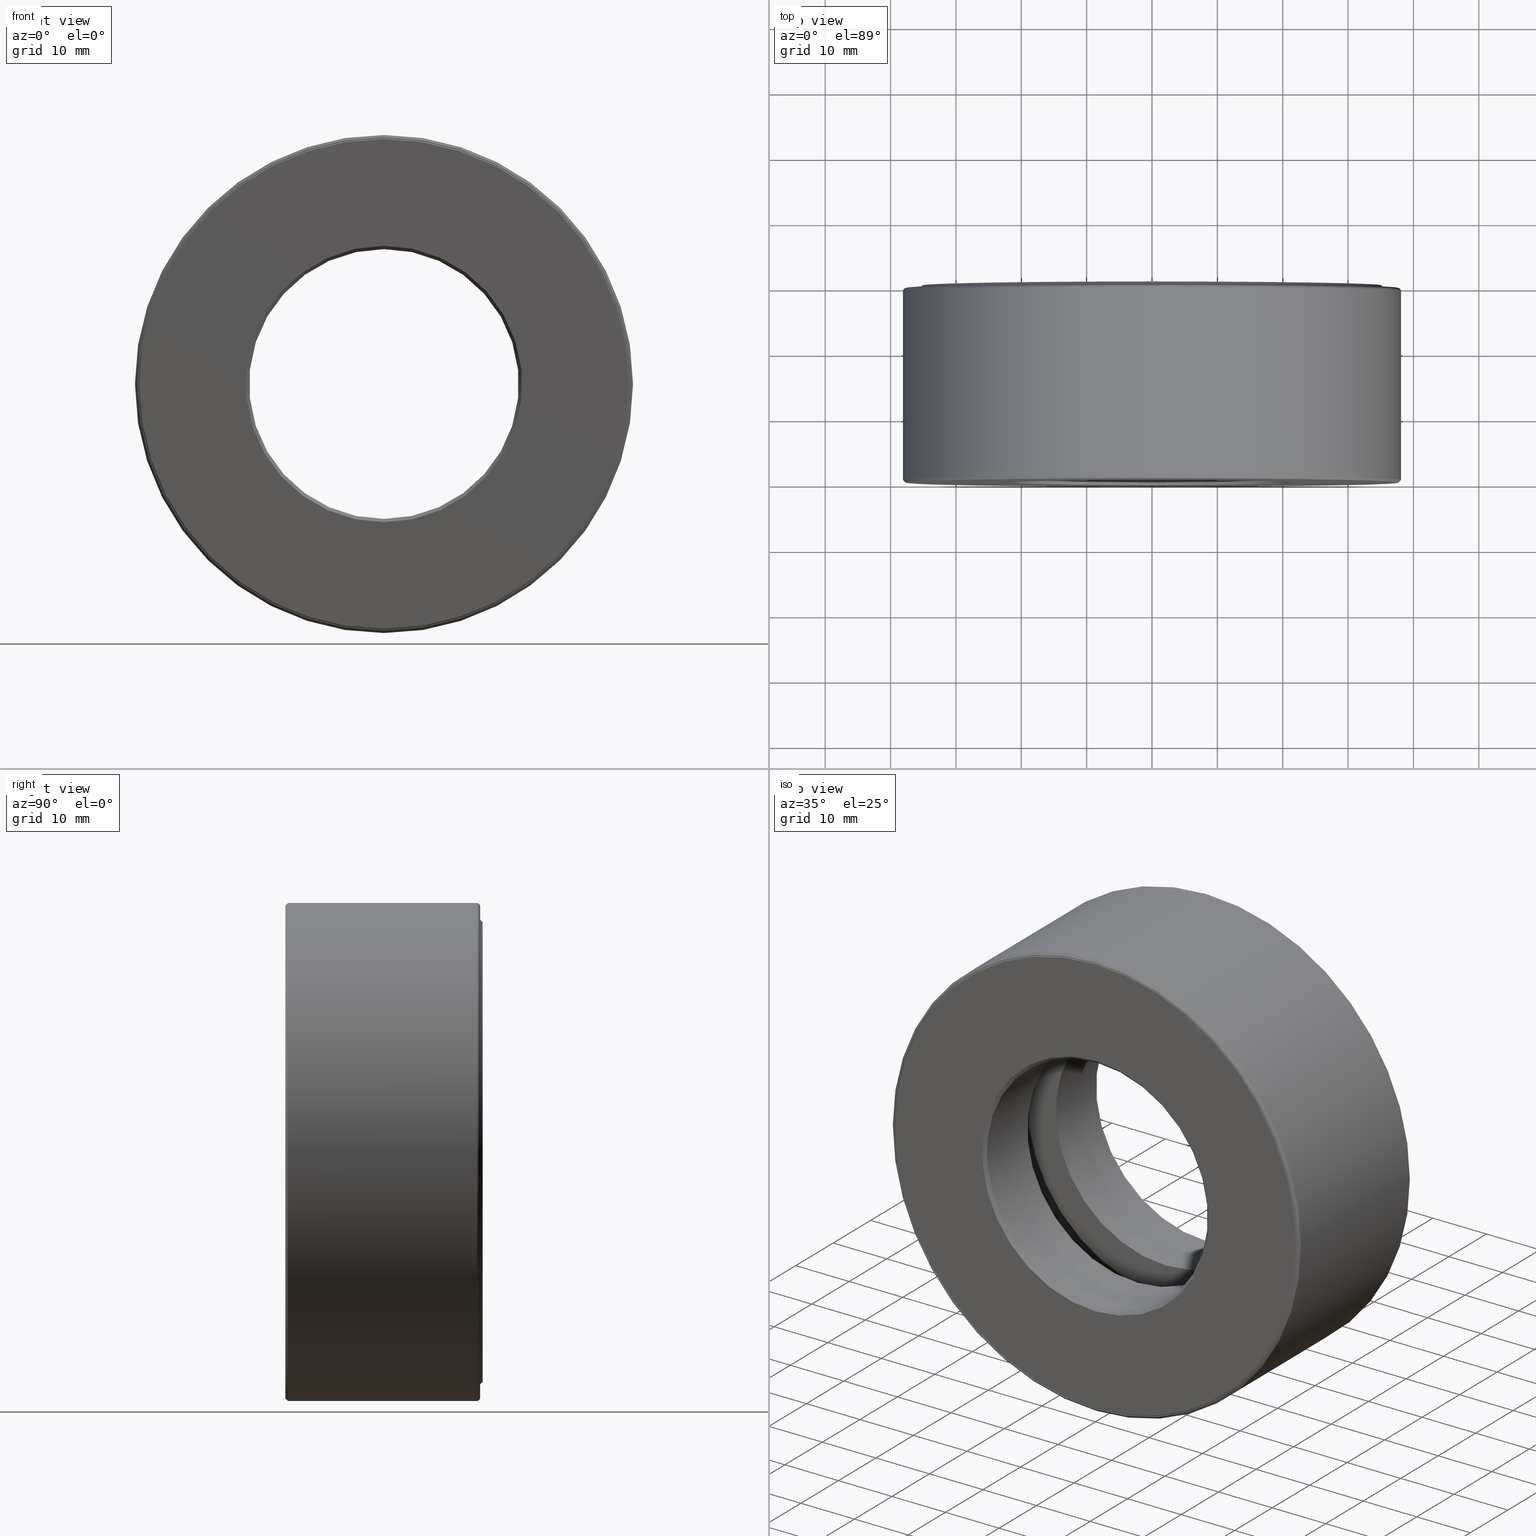
[diagram: canonical four-view strip — front | top / right | iso, engineering-drawing reading convention]
A machine part, canonical four-view strip (front | top / right | iso — engineering-drawing reading convention). The complete STEP part file that produces these views, byte-faithful:
ISO-10303-21;
HEADER;
FILE_DESCRIPTION (( 'STEP AP203' ),
    '1' );
FILE_NAME ('T-100-29.step',
    '2016-06-29T18:27:29',
    ( '' ),
    ( '' ),
    'SwSTEP 2.0',
    'SolidWorks 2016',
    '' );
FILE_SCHEMA (( 'CONFIG_CONTROL_DESIGN' ));
ENDSEC;

DATA;
#1 = VERTEX_POINT ( 'NONE', #30 ) ;
#2 = APPROVAL ( #462, 'UNSPECIFIED' ) ;
#3 = PLANE ( 'NONE',  #334 ) ;
#4 = AXIS2_PLACEMENT_3D ( 'NONE', #446, #309, #24 ) ;
#5 = ORIENTED_EDGE ( 'NONE', *, *, #422, .F. ) ;
#6 = EDGE_LOOP ( 'NONE', ( #384 ) ) ;
#7 = DIRECTION ( 'NONE',  ( 0.0000000000000000000, 0.0000000000000000000, -1.000000000000000000 ) ) ;
#8 = EDGE_CURVE ( 'NONE', #359, #359, #193, .T. ) ;
#9 = CONICAL_SURFACE ( 'NONE', #406, 0.8125000000000000000, 0.7853981633974431700 ) ;
#10 = CLOSED_SHELL ( 'NONE', ( #444 ) ) ;
#11 = ORIENTED_EDGE ( 'NONE', *, *, #267, .T. ) ;
#12 = DATE_AND_TIME ( #516, #340 ) ;
#13 = CIRCLE ( 'NONE', #362, 1.020999999999999900 ) ;
#14 = FACE_OUTER_BOUND ( 'NONE', #310, .T. ) ;
#15 = ORIENTED_EDGE ( 'NONE', *, *, #377, .T. ) ;
#16 = EDGE_LOOP ( 'NONE', ( #552 ) ) ;
#17 = AXIS2_PLACEMENT_3D ( 'NONE', #522, #53, #469 ) ;
#18 = APPROVAL_PERSON_ORGANIZATION ( #397, #428, #90 ) ;
#19 = CIRCLE ( 'NONE', #368, 0.8125000000000001100 ) ;
#20 = DIRECTION ( 'NONE',  ( -0.0000000000000000000, 1.000000000000000000, -0.0000000000000000000 ) ) ;
#21 = CARTESIAN_POINT ( 'NONE',  ( 0.0000000000000000000, 0.01499999999999984000, 1.499999999999999800 ) ) ;
#22 = ADVANCED_FACE ( 'NONE', ( ), #550, .T. ) ;
#23 = CARTESIAN_POINT ( 'NONE',  ( 0.0000000000000000000, 1.172499999999999900, 0.0000000000000000000 ) ) ;
#24 = DIRECTION ( 'NONE',  ( 1.047444401652940000E-014, 0.0000000000000000000, 1.000000000000000000 ) ) ;
#25 = EDGE_LOOP ( 'NONE', ( #105 ) ) ;
#26 = EDGE_LOOP ( 'NONE', ( #557 ) ) ;
#27 = EDGE_CURVE ( 'NONE', #128, #128, #433, .T. ) ;
#28 = ADVANCED_FACE ( 'NONE', ( #68, #503 ), #523, .T. ) ;
#29 = DIRECTION ( 'NONE',  ( 0.0000000000000000000, 0.0000000000000000000, 1.000000000000000000 ) ) ;
#30 = CARTESIAN_POINT ( 'NONE',  ( 0.0000000000000000000, 0.7437499999999998000, 1.472999999999999900 ) ) ;
#31 = VERTEX_POINT ( 'NONE', #127 ) ;
#32 = FACE_BOUND ( 'NONE', #106, .T. ) ;
#33 = CARTESIAN_POINT ( 'NONE',  ( 0.0000000000000000000, 1.172499999999999900, 1.480000000000000000 ) ) ;
#34 = DIMENSIONAL_EXPONENTS ( 1.000000000000000000, 0.0000000000000000000, 0.0000000000000000000, 0.0000000000000000000, 0.0000000000000000000, 0.0000000000000000000, 0.0000000000000000000 ) ;
#35 = DIRECTION ( 'NONE',  ( 0.0000000000000000000, 0.0000000000000000000, 1.000000000000000000 ) ) ;
#36 = AXIS2_PLACEMENT_3D ( 'NONE', #555, #560, #473 ) ;
#37 = APPLICATION_CONTEXT ( 'configuration controlled 3d designs of mechanical parts and assemblies' ) ;
#38 = ORIENTED_EDGE ( 'NONE', *, *, #267, .F. ) ;
#39 = DIRECTION ( 'NONE',  ( 0.0000000000000000000, 0.0000000000000000000, 1.000000000000000000 ) ) ;
#40 = ORIENTED_EDGE ( 'NONE', *, *, #46, .T. ) ;
#41 = AXIS2_PLACEMENT_3D ( 'NONE', #538, #119, #352 ) ;
#42 = DATE_AND_TIME ( #125, #480 ) ;
#43 = DIRECTION ( 'NONE',  ( 0.0000000000000000000, 0.0000000000000000000, 1.000000000000000000 ) ) ;
#44 = PERSON_AND_ORGANIZATION_ROLE ( 'design_supplier' ) ;
#45 = PERSON_AND_ORGANIZATION_ROLE ( 'creator' ) ;
#46 = EDGE_CURVE ( 'NONE', #350, #350, #564, .T. ) ;
#47 = PLANE ( 'NONE',  #298 ) ;
#48 = ORIENTED_EDGE ( 'NONE', *, *, #602, .F. ) ;
#49 = CALENDAR_DATE ( 2016, 29, 6 ) ;
#50 = FACE_OUTER_BOUND ( 'NONE', #411, .T. ) ;
#51 = CARTESIAN_POINT ( 'NONE',  ( 0.0000000000000000000, 1.152499999999999900, 0.0000000000000000000 ) ) ;
#52 = AXIS2_PLACEMENT_3D ( 'NONE', #407, #495, #35 ) ;
#53 = DIRECTION ( 'NONE',  ( -0.0000000000000000000, 1.000000000000000000, -0.0000000000000000000 ) ) ;
#54 = EDGE_LOOP ( 'NONE', ( #488 ) ) ;
#55 = DIRECTION ( 'NONE',  ( -0.0000000000000000000, 1.000000000000000000, -0.0000000000000000000 ) ) ;
#56 = VERTEX_POINT ( 'NONE', #225 ) ;
#57 = AXIS2_PLACEMENT_3D ( 'NONE', #96, #385, #479 ) ;
#58 = FACE_OUTER_BOUND ( 'NONE', #401, .T. ) ;
#59 = DIRECTION ( 'NONE',  ( -0.0000000000000000000, 1.000000000000000000, -0.0000000000000000000 ) ) ;
#60 = ORIENTED_EDGE ( 'NONE', *, *, #80, .F. ) ;
#61 = AXIS2_PLACEMENT_3D ( 'NONE', #77, #266, #357 ) ;
#62 = FACE_OUTER_BOUND ( 'NONE', #484, .T. ) ;
#63 = ORIENTED_EDGE ( 'NONE', *, *, #321, .F. ) ;
#64 = CC_DESIGN_PERSON_AND_ORGANIZATION_ASSIGNMENT ( #168, #44, ( #99 ) ) ;
#65 = FACE_OUTER_BOUND ( 'NONE', #110, .T. ) ;
#66 = CC_DESIGN_DATE_AND_TIME_ASSIGNMENT ( #42, #418, ( #131 ) ) ;
#67 = ADVANCED_FACE ( 'NONE', ( #265, #417 ), #296, .T. ) ;
#68 = FACE_OUTER_BOUND ( 'NONE', #565, .T. ) ;
#69 = AXIS2_PLACEMENT_3D ( 'NONE', #23, #579, #587 ) ;
#70 = DIRECTION ( 'NONE',  ( 0.0000000000000000000, 0.0000000000000000000, 1.000000000000000000 ) ) ;
#71 = EDGE_LOOP ( 'NONE', ( #242 ) ) ;
#72 = DIRECTION ( 'NONE',  ( -0.0000000000000000000, 1.000000000000000000, -0.0000000000000000000 ) ) ;
#73 = DIRECTION ( 'NONE',  ( 0.0000000000000000000, -0.0000000000000000000, -1.000000000000000000 ) ) ;
#74 = FACE_OUTER_BOUND ( 'NONE', #452, .T. ) ;
#75 = DIRECTION ( 'NONE',  ( -0.0000000000000000000, 1.000000000000000000, -0.0000000000000000000 ) ) ;
#76 = ADVANCED_FACE ( 'NONE', ( #14, #545 ), #311, .F. ) ;
#77 = CARTESIAN_POINT ( 'NONE',  ( 0.0000000000000000000, -8.323599355695802500E-017, 0.0000000000000000000 ) ) ;
#78 = DIRECTION ( 'NONE',  ( -0.0000000000000000000, 1.000000000000000000, -0.0000000000000000000 ) ) ;
#79 = EDGE_LOOP ( 'NONE', ( #396 ) ) ;
#80 = EDGE_CURVE ( 'NONE', #1, #1, #405, .T. ) ;
#81 = DIRECTION ( 'NONE',  ( 0.0000000000000000000, 0.0000000000000000000, 1.000000000000000000 ) ) ;
#82 = PERSON_AND_ORGANIZATION ( #373, #597 ) ;
#83 = ADVANCED_FACE ( 'NONE', ( #342, #381 ), #126, .F. ) ;
#84 = FACE_OUTER_BOUND ( 'NONE', #54, .T. ) ;
#85 = CARTESIAN_POINT ( 'NONE',  ( 0.0000000000000000000, 0.5937500000000000000, 0.0000000000000000000 ) ) ;
#86 = DIRECTION ( 'NONE',  ( 0.0000000000000000000, 0.0000000000000000000, -1.000000000000000000 ) ) ;
#87 = AXIS2_PLACEMENT_3D ( 'NONE', #490, #536, #541 ) ;
#88 = EDGE_LOOP ( 'NONE', ( #367 ) ) ;
#89 = CARTESIAN_POINT ( 'NONE',  ( 0.0000000000000000000, 0.4437500000000002000, 0.0000000000000000000 ) ) ;
#90 = APPROVAL_ROLE ( '' ) ;
#91 = EDGE_LOOP ( 'NONE', ( #11 ) ) ;
#92 = DIRECTION ( 'NONE',  ( 0.0000000000000000000, 0.0000000000000000000, -1.000000000000000000 ) ) ;
#93 = MANIFOLD_SOLID_BREP ( 'BALLS[1]', #272 ) ;
#94 = APPROVAL_STATUS ( 'not_yet_approved' ) ;
#95 = CIRCLE ( 'NONE', #218, 1.480000000000000000 ) ;
#96 = CARTESIAN_POINT ( 'NONE',  ( 1.220999999999999900, 0.5937499999999998900, -8.526197429454931100E-015 ) ) ;
#97 = ORIENTED_EDGE ( 'NONE', *, *, #243, .T. ) ;
#98 = DIRECTION ( 'NONE',  ( -0.0000000000000000000, 1.000000000000000000, -0.0000000000000000000 ) ) ;
#99 = PRODUCT_DEFINITION_FORMATION_WITH_SPECIFIED_SOURCE ( 'ANY', '', #320, .NOT_KNOWN. ) ;
#100 = FACE_OUTER_BOUND ( 'NONE', #116, .T. ) ;
#101 = TOROIDAL_SURFACE ( 'NONE', #200, 1.220999999999999900, 0.2500000000000000600 ) ;
#102 = CARTESIAN_POINT ( 'NONE',  ( 0.0000000000000000000, 1.152499999999999900, 0.0000000000000000000 ) ) ;
#103 = ADVANCED_BREP_SHAPE_REPRESENTATION ( 'T-100-29', ( #228, #147, #451, #93, #346, #314, #201 ), #343 ) ;
#104 = CARTESIAN_POINT ( 'NONE',  ( 0.0000000000000000000, -8.216886543443291800E-017, 0.0000000000000000000 ) ) ;
#105 = ORIENTED_EDGE ( 'NONE', *, *, #574, .T. ) ;
#106 = EDGE_LOOP ( 'NONE', ( #567 ) ) ;
#107 = DIRECTION ( 'NONE',  ( 0.0000000000000000000, 0.0000000000000000000, 1.000000000000000000 ) ) ;
#108 = AXIS2_PLACEMENT_3D ( 'NONE', #581, #529, #575 ) ;
#109 = TOROIDAL_SURFACE ( 'NONE', #534, 1.220999999999999900, 0.2500000000000000600 ) ;
#110 = EDGE_LOOP ( 'NONE', ( #40 ) ) ;
#111 = ORIENTED_EDGE ( 'NONE', *, *, #46, .F. ) ;
#112 = PERSON_AND_ORGANIZATION ( #373, #597 ) ;
#113 = EDGE_CURVE ( 'NONE', #439, #439, #430, .T. ) ;
#114 = CONICAL_SURFACE ( 'NONE', #187, 1.474999999999999600, 0.7853981633974469500 ) ;
#115 = FACE_BOUND ( 'NONE', #257, .T. ) ;
#116 = EDGE_LOOP ( 'NONE', ( #514 ) ) ;
#117 = CARTESIAN_POINT ( 'NONE',  ( 4.263098714727465500E-015, 0.5937499999999998900, 1.220999999999999900 ) ) ;
#118 = CARTESIAN_POINT ( 'NONE',  ( 0.0000000000000000000, -8.312292382913186900E-017, 1.480000000000000000 ) ) ;
#119 = DIRECTION ( 'NONE',  ( 0.0000000000000000000, -1.000000000000000000, 0.0000000000000000000 ) ) ;
#120 = AXIS2_PLACEMENT_3D ( 'NONE', #498, #453, #172 ) ;
#121 = EDGE_LOOP ( 'NONE', ( #38 ) ) ;
#122 = ORIENTED_EDGE ( 'NONE', *, *, #197, .T. ) ;
#123 = CARTESIAN_POINT ( 'NONE',  ( 1.027336904397043400E-015, 0.4437500000000000300, 0.0000000000000000000 ) ) ;
#124 = ADVANCED_FACE ( 'NONE', ( #527, #486 ), #232, .F. ) ;
#125 = CALENDAR_DATE ( 2016, 29, 6 ) ;
#126 = PLANE ( 'NONE',  #120 ) ;
#127 = CARTESIAN_POINT ( 'NONE',  ( 0.0000000000000000000, 0.4437499999999999200, 1.421000000000000000 ) ) ;
#128 = VERTEX_POINT ( 'NONE', #21 ) ;
#129 = ADVANCED_FACE ( 'NONE', ( #554, #143 ), #288, .F. ) ;
#130 = DIRECTION ( 'NONE',  ( 0.0000000000000000000, -1.000000000000000000, 0.0000000000000000000 ) ) ;
#131 = SECURITY_CLASSIFICATION ( '', '', #269 ) ;
#132 = APPROVAL_STATUS ( 'not_yet_approved' ) ;
#133 = EDGE_LOOP ( 'NONE', ( #279 ) ) ;
#134 = DIRECTION ( 'NONE',  ( -0.0000000000000000000, 1.000000000000000000, -0.0000000000000000000 ) ) ;
#135 = DIRECTION ( 'NONE',  ( -0.0000000000000000000, 1.000000000000000000, -0.0000000000000000000 ) ) ;
#136 = AXIS2_PLACEMENT_3D ( 'NONE', #178, #134, #43 ) ;
#137 = CARTESIAN_POINT ( 'NONE',  ( 0.0000000000000000000, 0.4437499999999999200, 0.0000000000000000000 ) ) ;
#138 = EDGE_LOOP ( 'NONE', ( #258 ) ) ;
#139 = ORIENTED_EDGE ( 'NONE', *, *, #145, .F. ) ;
#140 = CARTESIAN_POINT ( 'NONE',  ( 4.872450708124213000E-016, 0.7437499999999999100, 0.0000000000000000000 ) ) ;
#141 = VERTEX_POINT ( 'NONE', #302 ) ;
#142 = FACE_OUTER_BOUND ( 'NONE', #365, .T. ) ;
#143 = FACE_OUTER_BOUND ( 'NONE', #202, .T. ) ;
#144 = DIRECTION ( 'NONE',  ( 0.0000000000000000000, 0.0000000000000000000, 1.000000000000000000 ) ) ;
#145 = EDGE_CURVE ( 'NONE', #223, #223, #181, .T. ) ;
#146 = DIRECTION ( 'NONE',  ( 0.0000000000000000000, 0.0000000000000000000, 1.000000000000000000 ) ) ;
#147 = MANIFOLD_SOLID_BREP ( 'Revolve2[2]', #470 ) ;
#148 = EDGE_LOOP ( 'NONE', ( #339 ) ) ;
#149 = CARTESIAN_POINT ( 'NONE',  ( 0.0000000000000000000, -8.216886543443291800E-017, 0.0000000000000000000 ) ) ;
#150 = ORIENTED_EDGE ( 'NONE', *, *, #243, .F. ) ;
#151 = AXIS2_PLACEMENT_3D ( 'NONE', #216, #505, #39 ) ;
#152 = COORDINATED_UNIVERSAL_TIME_OFFSET ( 5, 0, .BEHIND. ) ;
#153 = CC_DESIGN_DATE_AND_TIME_ASSIGNMENT ( #229, #592, ( #568 ) ) ;
#154 = PLANE ( 'NONE',  #312 ) ;
#155 = EDGE_LOOP ( 'NONE', ( #60 ) ) ;
#156 = AXIS2_PLACEMENT_3D ( 'NONE', #220, #416, #86 ) ;
#157 = APPROVAL_DATE_TIME ( #281, #428 ) ;
#158 = CIRCLE ( 'NONE', #87, 0.8325000000000002400 ) ;
#159 = AXIS2_PLACEMENT_3D ( 'NONE', #331, #287, #563 ) ;
#160 = ORIENTED_EDGE ( 'NONE', *, *, #80, .T. ) ;
#161 = PERSON_AND_ORGANIZATION ( #373, #597 ) ;
#162 = AXIS2_PLACEMENT_3D ( 'NONE', #137, #55, #429 ) ;
#163 = FACE_OUTER_BOUND ( 'NONE', #166, .T. ) ;
#164 = AXIS2_PLACEMENT_3D ( 'NONE', #413, #468, #507 ) ;
#165 = ADVANCED_FACE ( 'NONE', ( #58, #435 ), #9, .F. ) ;
#166 = EDGE_LOOP ( 'NONE', ( #573 ) ) ;
#167 = CARTESIAN_POINT ( 'NONE',  ( 0.0000000000000000000, 0.7437499999999999100, 1.421000000000000000 ) ) ;
#168 = PERSON_AND_ORGANIZATION ( #373, #597 ) ;
#169 = SPHERICAL_SURFACE ( 'NONE', #57, 0.2500000000000000600 ) ;
#170 = ADVANCED_FACE ( 'NONE', ( #246, #276 ), #184, .F. ) ;
#171 = CARTESIAN_POINT ( 'NONE',  ( 0.0000000000000000000, 0.0000000000000000000, 0.0000000000000000000 ) ) ;
#172 = DIRECTION ( 'NONE',  ( 0.0000000000000000000, 0.0000000000000000000, 1.000000000000000000 ) ) ;
#173 = CARTESIAN_POINT ( 'NONE',  ( 0.0000000000000000000, 0.7437499999999998000, 0.8125000000000001100 ) ) ;
#174 = ADVANCED_FACE ( 'NONE', ( #163, #115 ), #215, .T. ) ;
#175 = EDGE_CURVE ( 'NONE', #474, #474, #590, .T. ) ;
#176 = CLOSED_SHELL ( 'NONE', ( #494 ) ) ;
#177 = APPROVAL_DATE_TIME ( #393, #247 ) ;
#178 = CARTESIAN_POINT ( 'NONE',  ( 0.0000000000000000000, 1.152499999999999900, 0.0000000000000000000 ) ) ;
#179 = APPLICATION_PROTOCOL_DEFINITION ( 'international standard', 'config_control_design', 1994, #37 ) ;
#180 = AXIS2_PLACEMENT_3D ( 'NONE', #419, #370, #461 ) ;
#181 = CIRCLE ( 'NONE', #180, 0.8125000000000001100 ) ;
#182 = APPROVAL_ROLE ( '' ) ;
#183 = DIRECTION ( 'NONE',  ( -0.0000000000000000000, 1.000000000000000000, -0.0000000000000000000 ) ) ;
#184 = PLANE ( 'NONE',  #294 ) ;
#185 = MECHANICAL_CONTEXT ( 'NONE', #420, 'mechanical' ) ;
#186 = CIRCLE ( 'NONE', #399, 1.474999999999999600 ) ;
#187 = AXIS2_PLACEMENT_3D ( 'NONE', #149, #518, #146 ) ;
#188 = PERSON_AND_ORGANIZATION ( #373, #597 ) ;
#189 = FACE_OUTER_BOUND ( 'NONE', #392, .T. ) ;
#190 = DIRECTION ( 'NONE',  ( 0.0000000000000000000, -0.0000000000000000000, -1.000000000000000000 ) ) ;
#191 = AXIS2_PLACEMENT_3D ( 'NONE', #448, #259, #262 ) ;
#192 = DIRECTION ( 'NONE',  ( 0.0000000000000000000, 0.0000000000000000000, 1.000000000000000000 ) ) ;
#193 = CIRCLE ( 'NONE', #207, 1.421000000000000000 ) ;
#194 = EDGE_LOOP ( 'NONE', ( #227 ) ) ;
#195 = FACE_OUTER_BOUND ( 'NONE', #138, .T. ) ;
#196 = ORIENTED_EDGE ( 'NONE', *, *, #549, .T. ) ;
#197 = EDGE_CURVE ( 'NONE', #482, #482, #19, .T. ) ;
#198 = FACE_BOUND ( 'NONE', #237, .T. ) ;
#199 = CIRCLE ( 'NONE', #151, 1.480000000000000000 ) ;
#200 = AXIS2_PLACEMENT_3D ( 'NONE', #85, #135, #271 ) ;
#201 = AXIS2_PLACEMENT_3D ( 'NONE', #582, #316, #318 ) ;
#202 = EDGE_LOOP ( 'NONE', ( #97 ) ) ;
#203 = ORIENTED_EDGE ( 'NONE', *, *, #27, .F. ) ;
#204 = CARTESIAN_POINT ( 'NONE',  ( 0.0000000000000000000, 0.7437499999999999100, 0.0000000000000000000 ) ) ;
#205 = VERTEX_POINT ( 'NONE', #400 ) ;
#206 = CARTESIAN_POINT ( 'NONE',  ( 0.0000000000000000000, 0.4437500000000000300, 1.480000000000000000 ) ) ;
#207 = AXIS2_PLACEMENT_3D ( 'NONE', #204, #403, #81 ) ;
#208 = CARTESIAN_POINT ( 'NONE',  ( 0.0000000000000000000, 0.7437499999999999100, 1.020999999999999900 ) ) ;
#209 = EDGE_LOOP ( 'NONE', ( #248 ) ) ;
#210 = ADVANCED_FACE ( 'NONE', ( #388, #361 ), #598, .F. ) ;
#211 = DIRECTION ( 'NONE',  ( -1.000000000000000000, 0.0000000000000000000, 3.491481338843132600E-015 ) ) ;
#212 = CARTESIAN_POINT ( 'NONE',  ( 0.0000000000000000000, -8.216886543443291800E-017, 1.474999999999999600 ) ) ;
#213 = VERTEX_POINT ( 'NONE', #208 ) ;
#214 = CYLINDRICAL_SURFACE ( 'NONE', #383, 1.472999999999999900 ) ;
#215 = CONICAL_SURFACE ( 'NONE', #156, 1.385000000000000000, 0.7853981633974513900 ) ;
#216 = CARTESIAN_POINT ( 'NONE',  ( 0.0000000000000000000, 0.4437500000000000300, 0.0000000000000000000 ) ) ;
#217 = APPROVAL_ROLE ( '' ) ;
#218 = AXIS2_PLACEMENT_3D ( 'NONE', #234, #605, #325 ) ;
#219 = EDGE_LOOP ( 'NONE', ( #15 ) ) ;
#220 = CARTESIAN_POINT ( 'NONE',  ( 0.0000000000000000000, 1.187499999999999800, 0.0000000000000000000 ) ) ;
#221 = ORIENTED_EDGE ( 'NONE', *, *, #175, .T. ) ;
#222 =( LENGTH_UNIT ( ) NAMED_UNIT ( * ) SI_UNIT ( $, .METRE. ) );
#223 = VERTEX_POINT ( 'NONE', #173 ) ;
#224 = DIRECTION ( 'NONE',  ( 0.0000000000000000000, -1.000000000000000000, 0.0000000000000000000 ) ) ;
#225 = CARTESIAN_POINT ( 'NONE',  ( 0.0000000000000000000, 1.152499999999999900, 1.500000000000000200 ) ) ;
#226 = CARTESIAN_POINT ( 'NONE',  ( 0.0000000000000000000, 0.02000000000000046900, 0.0000000000000000000 ) ) ;
#227 = ORIENTED_EDGE ( 'NONE', *, *, #431, .T. ) ;
#228 = MANIFOLD_SOLID_BREP ( 'Revolve2[1]', #319 ) ;
#229 = DATE_AND_TIME ( #260, #500 ) ;
#230 = DIRECTION ( 'NONE',  ( -0.0000000000000000000, 1.000000000000000000, -0.0000000000000000000 ) ) ;
#231 = CYLINDRICAL_SURFACE ( 'NONE', #395, 1.420000000000000200 ) ;
#232 = CONICAL_SURFACE ( 'NONE', #483, 0.8125000000000001100, 0.7853981633974415100 ) ;
#233 = AXIS2_PLACEMENT_3D ( 'NONE', #305, #531, #29 ) ;
#234 = CARTESIAN_POINT ( 'NONE',  ( 0.0000000000000000000, 0.005000000000000288100, 0.0000000000000000000 ) ) ;
#235 = EDGE_LOOP ( 'NONE', ( #48 ) ) ;
#236 = AXIS2_PLACEMENT_3D ( 'NONE', #117, #211, #492 ) ;
#237 = EDGE_LOOP ( 'NONE', ( #478 ) ) ;
#238 = DIRECTION ( 'NONE',  ( 0.0000000000000000000, 0.0000000000000000000, 1.000000000000000000 ) ) ;
#239 = VERTEX_POINT ( 'NONE', #450 ) ;
#240 = CIRCLE ( 'NONE', #289, 1.485000000000000100 ) ;
#241 = EDGE_LOOP ( 'NONE', ( #203 ) ) ;
#242 = ORIENTED_EDGE ( 'NONE', *, *, #390, .F. ) ;
#243 = EDGE_CURVE ( 'NONE', #205, #205, #459, .T. ) ;
#244 = PERSON_AND_ORGANIZATION ( #373, #597 ) ;
#245 = FACE_BOUND ( 'NONE', #344, .T. ) ;
#246 = FACE_BOUND ( 'NONE', #595, .T. ) ;
#247 = APPROVAL ( #132, 'UNSPECIFIED' ) ;
#248 = ORIENTED_EDGE ( 'NONE', *, *, #27, .T. ) ;
#249 = ORIENTED_EDGE ( 'NONE', *, *, #431, .F. ) ;
#250 = AXIS2_PLACEMENT_3D ( 'NONE', #123, #442, #73 ) ;
#251 = VERTEX_POINT ( 'NONE', #410 ) ;
#252 = FACE_OUTER_BOUND ( 'NONE', #219, .T. ) ;
#253 = CARTESIAN_POINT ( 'NONE',  ( 0.0000000000000000000, 0.0000000000000000000, 0.0000000000000000000 ) ) ;
#254 = EDGE_CURVE ( 'NONE', #369, #369, #199, .T. ) ;
#255 = CARTESIAN_POINT ( 'NONE',  ( 0.0000000000000000000, -8.323599355695802500E-017, 0.0000000000000000000 ) ) ;
#256 = ADVANCED_FACE ( 'NONE', ( #510, #517 ), #101, .F. ) ;
#257 = EDGE_LOOP ( 'NONE', ( #338 ) ) ;
#258 = ORIENTED_EDGE ( 'NONE', *, *, #377, .F. ) ;
#259 = DIRECTION ( 'NONE',  ( -0.0000000000000000000, 1.000000000000000000, -0.0000000000000000000 ) ) ;
#260 = CALENDAR_DATE ( 2016, 29, 6 ) ;
#261 = CARTESIAN_POINT ( 'NONE',  ( 0.0000000000000000000, 1.167499999999999500, 0.0000000000000000000 ) ) ;
#262 = DIRECTION ( 'NONE',  ( 0.0000000000000000000, 0.0000000000000000000, 1.000000000000000000 ) ) ;
#263 = FACE_OUTER_BOUND ( 'NONE', #572, .T. ) ;
#264 = ADVANCED_FACE ( 'NONE', ( #252, #553 ), #109, .F. ) ;
#265 = FACE_OUTER_BOUND ( 'NONE', #241, .T. ) ;
#266 = DIRECTION ( 'NONE',  ( -0.0000000000000000000, 1.000000000000000000, -0.0000000000000000000 ) ) ;
#267 = EDGE_CURVE ( 'NONE', #542, #542, #447, .T. ) ;
#268 = CARTESIAN_POINT ( 'NONE',  ( -4.360638658951516000E-016, 0.4437500000000001400, 0.0000000000000000000 ) ) ;
#269 = SECURITY_CLASSIFICATION_LEVEL ( 'unclassified' ) ;
#270 = ORIENTED_EDGE ( 'NONE', *, *, #337, .T. ) ;
#271 = DIRECTION ( 'NONE',  ( 0.0000000000000000000, 0.0000000000000000000, 1.000000000000000000 ) ) ;
#272 = CLOSED_SHELL ( 'NONE', ( #22 ) ) ;
#273 = COORDINATED_UNIVERSAL_TIME_OFFSET ( 5, 0, .BEHIND. ) ;
#274 = AXIS2_PLACEMENT_3D ( 'NONE', #278, #601, #322 ) ;
#275 = CC_DESIGN_PERSON_AND_ORGANIZATION_ASSIGNMENT ( #188, #45, ( #99 ) ) ;
#276 = FACE_OUTER_BOUND ( 'NONE', #91, .T. ) ;
#277 = APPLICATION_PROTOCOL_DEFINITION ( 'international standard', 'config_control_design', 1994, #420 ) ;
#278 = CARTESIAN_POINT ( 'NONE',  ( 0.0000000000000000000, 1.172499999999999900, 0.0000000000000000000 ) ) ;
#279 = ORIENTED_EDGE ( 'NONE', *, *, #489, .T. ) ;
#280 = DIRECTION ( 'NONE',  ( -0.0000000000000000000, 1.000000000000000000, -0.0000000000000000000 ) ) ;
#281 = DATE_AND_TIME ( #49, #348 ) ;
#282 = AXIS2_PLACEMENT_3D ( 'NONE', #89, #374, #463 ) ;
#283 = CYLINDRICAL_SURFACE ( 'NONE', #571, 1.480000000000000000 ) ;
#284 = EDGE_LOOP ( 'NONE', ( #5 ) ) ;
#285 = CC_DESIGN_APPROVAL ( #247, ( #568 ) ) ;
#286 = VERTEX_POINT ( 'NONE', #354 ) ;
#287 = DIRECTION ( 'NONE',  ( -0.0000000000000000000, 1.000000000000000000, -0.0000000000000000000 ) ) ;
#288 = CYLINDRICAL_SURFACE ( 'NONE', #306, 0.8125000000000001100 ) ;
#289 = AXIS2_PLACEMENT_3D ( 'NONE', #255, #78, #580 ) ;
#290 = CARTESIAN_POINT ( 'NONE',  ( 0.0000000000000000000, 0.0000000000000000000, 0.0000000000000000000 ) ) ;
#291 = VERTEX_POINT ( 'NONE', #371 ) ;
#292 = CIRCLE ( 'NONE', #162, 1.421000000000000000 ) ;
#293 = ORIENTED_EDGE ( 'NONE', *, *, #175, .F. ) ;
#294 = AXIS2_PLACEMENT_3D ( 'NONE', #547, #130, #456 ) ;
#295 = LOCAL_TIME ( 14, 27, 29.00000000000000000, #455 ) ;
#296 = CONICAL_SURFACE ( 'NONE', #61, 1.485000000000000100, 0.7853981633974409500 ) ;
#297 = ADVANCED_FACE ( 'NONE', ( #245, #313 ), #47, .F. ) ;
#298 = AXIS2_PLACEMENT_3D ( 'NONE', #268, #363, #315 ) ;
#299 = CC_DESIGN_PERSON_AND_ORGANIZATION_ASSIGNMENT ( #509, #546, ( #131 ) ) ;
#300 = DIRECTION ( 'NONE',  ( -0.0000000000000000000, 1.000000000000000000, -0.0000000000000000000 ) ) ;
#301 = PLANE ( 'NONE',  #250 ) ;
#302 = CARTESIAN_POINT ( 'NONE',  ( 0.0000000000000000000, 1.099500000000000600, 1.472999999999999900 ) ) ;
#303 = ADVANCED_FACE ( 'NONE', ( #570, #195 ), #3, .T. ) ;
#304 = FACE_OUTER_BOUND ( 'NONE', #121, .T. ) ;
#305 = CARTESIAN_POINT ( 'NONE',  ( -1.361609456481334800E-032, -6.936332796413168700E-018, 0.0000000000000000000 ) ) ;
#306 = AXIS2_PLACEMENT_3D ( 'NONE', #535, #300, #70 ) ;
#307 = ADVANCED_FACE ( 'NONE', ( #263, #74 ), #214, .T. ) ;
#308 = DIRECTION ( 'NONE',  ( -0.0000000000000000000, 1.000000000000000000, -0.0000000000000000000 ) ) ;
#309 = DIRECTION ( 'NONE',  ( 1.000000000000000000, 0.0000000000000000000, -1.047444401652940200E-014 ) ) ;
#310 = EDGE_LOOP ( 'NONE', ( #335 ) ) ;
#311 = PLANE ( 'NONE',  #233 ) ;
#312 = AXIS2_PLACEMENT_3D ( 'NONE', #432, #524, #238 ) ;
#313 = FACE_OUTER_BOUND ( 'NONE', #376, .T. ) ;
#314 = MANIFOLD_SOLID_BREP ( 'BALLS[3]', #176 ) ;
#315 = DIRECTION ( 'NONE',  ( 0.0000000000000000000, -0.0000000000000000000, -1.000000000000000000 ) ) ;
#316 = DIRECTION ( 'NONE',  ( 0.0000000000000000000, 0.0000000000000000000, 1.000000000000000000 ) ) ;
#317 = AXIS2_PLACEMENT_3D ( 'NONE', #51, #230, #324 ) ;
#318 = DIRECTION ( 'NONE',  ( 1.000000000000000000, 0.0000000000000000000, 0.0000000000000000000 ) ) ;
#319 = CLOSED_SHELL ( 'NONE', ( #256, #583, #458, #210, #501, #170, #412, #28, #67, #83, #360, #364, #76, #165, #129, #297 ) ) ;
#320 = PRODUCT ( 'T-100-29', 'T-100-29', '', ( #185 ) ) ;
#321 = EDGE_CURVE ( 'NONE', #141, #141, #330, .T. ) ;
#322 = DIRECTION ( 'NONE',  ( 0.0000000000000000000, 0.0000000000000000000, 1.000000000000000000 ) ) ;
#323 = CYLINDRICAL_SURFACE ( 'NONE', #159, 1.480000000000000000 ) ;
#324 = DIRECTION ( 'NONE',  ( 0.0000000000000000000, 0.0000000000000000000, 1.000000000000000000 ) ) ;
#325 = DIRECTION ( 'NONE',  ( 0.0000000000000000000, 0.0000000000000000000, 1.000000000000000000 ) ) ;
#326 = ORIENTED_EDGE ( 'NONE', *, *, #332, .F. ) ;
#327 = DIRECTION ( 'NONE',  ( -0.0000000000000000000, 1.000000000000000000, -0.0000000000000000000 ) ) ;
#328 = CALENDAR_DATE ( 2016, 29, 6 ) ;
#329 = AXIS2_PLACEMENT_3D ( 'NONE', #515, #7, #389 ) ;
#330 = CIRCLE ( 'NONE', #17, 1.472999999999999900 ) ;
#331 = CARTESIAN_POINT ( 'NONE',  ( 0.0000000000000000000, 0.0000000000000000000, 0.0000000000000000000 ) ) ;
#332 = EDGE_CURVE ( 'NONE', #286, #286, #95, .T. ) ;
#333 = ORIENTED_EDGE ( 'NONE', *, *, #489, .F. ) ;
#334 = AXIS2_PLACEMENT_3D ( 'NONE', #140, #558, #190 ) ;
#335 = ORIENTED_EDGE ( 'NONE', *, *, #436, .F. ) ;
#336 = SHAPE_DEFINITION_REPRESENTATION ( #465, #103 ) ;
#337 = EDGE_CURVE ( 'NONE', #358, #358, #341, .T. ) ;
#338 = ORIENTED_EDGE ( 'NONE', *, *, #574, .F. ) ;
#339 = ORIENTED_EDGE ( 'NONE', *, *, #197, .F. ) ;
#340 = LOCAL_TIME ( 14, 27, 29.00000000000000000, #378 ) ;
#341 = CIRCLE ( 'NONE', #36, 0.8325000000000003500 ) ;
#342 = FACE_OUTER_BOUND ( 'NONE', #235, .T. ) ;
#343 =( GEOMETRIC_REPRESENTATION_CONTEXT ( 3 ) GLOBAL_UNCERTAINTY_ASSIGNED_CONTEXT ( ( #556 ) ) GLOBAL_UNIT_ASSIGNED_CONTEXT ( ( #506, #366, #464 ) ) REPRESENTATION_CONTEXT ( 'NONE', 'WORKASPACE' ) );
#344 = EDGE_LOOP ( 'NONE', ( #150 ) ) ;
#345 = AXIS2_PLACEMENT_3D ( 'NONE', #102, #327, #477 ) ;
#346 = MANIFOLD_SOLID_BREP ( 'BALLS[2]', #10 ) ;
#347 = EDGE_LOOP ( 'NONE', ( #270 ) ) ;
#348 = LOCAL_TIME ( 14, 27, 29.00000000000000000, #273 ) ;
#349 = CARTESIAN_POINT ( 'NONE',  ( 0.0000000000000000000, 0.4437500000000000300, 0.0000000000000000000 ) ) ;
#350 = VERTEX_POINT ( 'NONE', #408 ) ;
#351 = AXIS2_PLACEMENT_3D ( 'NONE', #171, #20, #353 ) ;
#352 = DIRECTION ( 'NONE',  ( 0.0000000000000000000, -0.0000000000000000000, -1.000000000000000000 ) ) ;
#353 = DIRECTION ( 'NONE',  ( 0.0000000000000000000, 0.0000000000000000000, 1.000000000000000000 ) ) ;
#354 = CARTESIAN_POINT ( 'NONE',  ( 0.0000000000000000000, 0.005000000000000288100, 1.480000000000000000 ) ) ;
#355 = ADVANCED_FACE ( 'NONE', ( #423, #491 ), #485, .F. ) ;
#356 = EDGE_LOOP ( 'NONE', ( #122 ) ) ;
#357 = DIRECTION ( 'NONE',  ( 0.0000000000000000000, 0.0000000000000000000, 1.000000000000000000 ) ) ;
#358 = VERTEX_POINT ( 'NONE', #588 ) ;
#359 = VERTEX_POINT ( 'NONE', #167 ) ;
#360 = ADVANCED_FACE ( 'NONE', ( #100, #84 ), #323, .F. ) ;
#361 = FACE_BOUND ( 'NONE', #497, .T. ) ;
#362 = AXIS2_PLACEMENT_3D ( 'NONE', #349, #504, #576 ) ;
#363 = DIRECTION ( 'NONE',  ( 0.0000000000000000000, -1.000000000000000000, 0.0000000000000000000 ) ) ;
#364 = ADVANCED_FACE ( 'NONE', ( #589, #198 ), #114, .T. ) ;
#365 = EDGE_LOOP ( 'NONE', ( #519 ) ) ;
#366 =( NAMED_UNIT ( * ) PLANE_ANGLE_UNIT ( ) SI_UNIT ( $, .RADIAN. ) );
#367 = ORIENTED_EDGE ( 'NONE', *, *, #602, .T. ) ;
#368 = AXIS2_PLACEMENT_3D ( 'NONE', #466, #183, #591 ) ;
#369 = VERTEX_POINT ( 'NONE', #206 ) ;
#370 = DIRECTION ( 'NONE',  ( -0.0000000000000000000, 1.000000000000000000, -0.0000000000000000000 ) ) ;
#371 = CARTESIAN_POINT ( 'NONE',  ( 0.0000000000000000000, 6.829619984160658000E-017, 0.8325000000000002400 ) ) ;
#372 = SPHERICAL_SURFACE ( 'NONE', #329, 0.2500000000000000600 ) ;
#373 = PERSON ( 'UNSPECIFIED', 'UNSPECIFIED', 'UNSPECIFIED', ('UNSPECIFIED'), ('UNSPECIFIED'), ('UNSPECIFIED') ) ;
#374 = DIRECTION ( 'NONE',  ( -0.0000000000000000000, 1.000000000000000000, -0.0000000000000000000 ) ) ;
#375 = CARTESIAN_POINT ( 'NONE',  ( 0.0000000000000000000, 0.0000000000000000000, 0.0000000000000000000 ) ) ;
#376 = EDGE_LOOP ( 'NONE', ( #196 ) ) ;
#377 = EDGE_CURVE ( 'NONE', #213, #213, #457, .T. ) ;
#378 = COORDINATED_UNIVERSAL_TIME_OFFSET ( 5, 0, .BEHIND. ) ;
#379 = CARTESIAN_POINT ( 'NONE',  ( 0.0000000000000000000, 0.7437499999999999100, 0.0000000000000000000 ) ) ;
#380 = FACE_OUTER_BOUND ( 'NONE', #155, .T. ) ;
#381 = FACE_BOUND ( 'NONE', #16, .T. ) ;
#382 = DIRECTION ( 'NONE',  ( -0.0000000000000000000, 1.000000000000000000, -0.0000000000000000000 ) ) ;
#383 = AXIS2_PLACEMENT_3D ( 'NONE', #375, #424, #425 ) ;
#384 = ORIENTED_EDGE ( 'NONE', *, *, #337, .F. ) ;
#385 = DIRECTION ( 'NONE',  ( 6.982962677686265100E-015, -0.0000000000000000000, 1.000000000000000000 ) ) ;
#386 = APPROVAL_PERSON_ORGANIZATION ( #112, #247, #182 ) ;
#387 = AXIS2_PLACEMENT_3D ( 'NONE', #493, #72, #499 ) ;
#388 = FACE_OUTER_BOUND ( 'NONE', #71, .T. ) ;
#389 = DIRECTION ( 'NONE',  ( 1.000000000000000000, 0.0000000000000000000, 0.0000000000000000000 ) ) ;
#390 = EDGE_CURVE ( 'NONE', #239, #239, #434, .T. ) ;
#391 = ORIENTED_EDGE ( 'NONE', *, *, #525, .F. ) ;
#392 = EDGE_LOOP ( 'NONE', ( #293 ) ) ;
#393 = DATE_AND_TIME ( #328, #295 ) ;
#394 = FACE_OUTER_BOUND ( 'NONE', #79, .T. ) ;
#395 = AXIS2_PLACEMENT_3D ( 'NONE', #253, #585, #398 ) ;
#396 = ORIENTED_EDGE ( 'NONE', *, *, #390, .T. ) ;
#397 = PERSON_AND_ORGANIZATION ( #373, #597 ) ;
#398 = DIRECTION ( 'NONE',  ( 0.0000000000000000000, 0.0000000000000000000, 1.000000000000000000 ) ) ;
#399 = AXIS2_PLACEMENT_3D ( 'NONE', #104, #59, #107 ) ;
#400 = CARTESIAN_POINT ( 'NONE',  ( 0.0000000000000000000, 0.4437500000000002000, 0.8125000000000001100 ) ) ;
#401 = EDGE_LOOP ( 'NONE', ( #333 ) ) ;
#402 = LENGTH_MEASURE_WITH_UNIT ( LENGTH_MEASURE( 0.02539999999999999900 ), #222 );
#403 = DIRECTION ( 'NONE',  ( -0.0000000000000000000, 1.000000000000000000, -0.0000000000000000000 ) ) ;
#404 = CIRCLE ( 'NONE', #191, 1.500000000000000200 ) ;
#405 = CIRCLE ( 'NONE', #52, 1.472999999999999900 ) ;
#406 = AXIS2_PLACEMENT_3D ( 'NONE', #594, #224, #92 ) ;
#407 = CARTESIAN_POINT ( 'NONE',  ( 0.0000000000000000000, 0.7437499999999998000, 0.0000000000000000000 ) ) ;
#408 = CARTESIAN_POINT ( 'NONE',  ( 0.0000000000000000000, 1.172499999999999900, 1.420000000000000200 ) ) ;
#409 = DIRECTION ( 'NONE',  ( 0.0000000000000000000, 0.0000000000000000000, 1.000000000000000000 ) ) ;
#410 = CARTESIAN_POINT ( 'NONE',  ( 0.0000000000000000000, 0.4437500000000000300, 1.020999999999999900 ) ) ;
#411 = EDGE_LOOP ( 'NONE', ( #437 ) ) ;
#412 = ADVANCED_FACE ( 'NONE', ( #304, #62 ), #577, .T. ) ;
#413 = CARTESIAN_POINT ( 'NONE',  ( 0.0000000000000000000, 1.152499999999999900, 0.0000000000000000000 ) ) ;
#414 = AXIS2_PLACEMENT_3D ( 'NONE', #226, #280, #603 ) ;
#415 = COORDINATED_UNIVERSAL_TIME_OFFSET ( 5, 0, .BEHIND. ) ;
#416 = DIRECTION ( 'NONE',  ( 0.0000000000000000000, -1.000000000000000000, 0.0000000000000000000 ) ) ;
#417 = FACE_BOUND ( 'NONE', #88, .T. ) ;
#418 = DATE_TIME_ROLE ( 'classification_date' ) ;
#419 = CARTESIAN_POINT ( 'NONE',  ( 0.0000000000000000000, 0.7437499999999998000, 0.0000000000000000000 ) ) ;
#420 = APPLICATION_CONTEXT ( 'configuration controlled 3d designs of mechanical parts and assemblies' ) ;
#421 = CLOSED_SHELL ( 'NONE', ( #440 ) ) ;
#422 = EDGE_CURVE ( 'NONE', #31, #31, #292, .T. ) ;
#423 = FACE_OUTER_BOUND ( 'NONE', #356, .T. ) ;
#424 = DIRECTION ( 'NONE',  ( -0.0000000000000000000, 1.000000000000000000, -0.0000000000000000000 ) ) ;
#425 = DIRECTION ( 'NONE',  ( 0.0000000000000000000, 0.0000000000000000000, 1.000000000000000000 ) ) ;
#426 = EDGE_LOOP ( 'NONE', ( #443 ) ) ;
#427 = CARTESIAN_POINT ( 'NONE',  ( 0.0000000000000000000, 0.0000000000000000000, 0.0000000000000000000 ) ) ;
#428 = APPROVAL ( #94, 'UNSPECIFIED' ) ;
#429 = DIRECTION ( 'NONE',  ( 0.0000000000000000000, 0.0000000000000000000, 1.000000000000000000 ) ) ;
#430 = CIRCLE ( 'NONE', #108, 1.480000000000000000 ) ;
#431 = EDGE_CURVE ( 'NONE', #569, #569, #537, .T. ) ;
#432 = CARTESIAN_POINT ( 'NONE',  ( -5.871618990907357600E-016, 1.187500000000000000, 0.0000000000000000000 ) ) ;
#433 = CIRCLE ( 'NONE', #472, 1.499999999999999800 ) ;
#434 = CIRCLE ( 'NONE', #345, 1.480000000000000000 ) ;
#435 = FACE_BOUND ( 'NONE', #194, .T. ) ;
#436 = EDGE_CURVE ( 'NONE', #586, #586, #186, .T. ) ;
#437 = ORIENTED_EDGE ( 'NONE', *, *, #254, .F. ) ;
#438 = APPROVAL_DATE_TIME ( #12, #2 ) ;
#439 = VERTEX_POINT ( 'NONE', #118 ) ;
#440 = ADVANCED_FACE ( 'NONE', ( ), #372, .T. ) ;
#441 = AXIS2_PLACEMENT_3D ( 'NONE', #427, #98, #475 ) ;
#442 = DIRECTION ( 'NONE',  ( 0.0000000000000000000, -1.000000000000000000, 0.0000000000000000000 ) ) ;
#443 = ORIENTED_EDGE ( 'NONE', *, *, #145, .T. ) ;
#444 = ADVANCED_FACE ( 'NONE', ( ), #169, .T. ) ;
#445 = DIRECTION ( 'NONE',  ( 0.0000000000000000000, 0.0000000000000000000, 1.000000000000000000 ) ) ;
#446 = CARTESIAN_POINT ( 'NONE',  ( -1.278929614418239700E-014, 0.5937499999999998900, -1.220999999999999900 ) ) ;
#447 = CIRCLE ( 'NONE', #274, 1.480000000000000000 ) ;
#448 = CARTESIAN_POINT ( 'NONE',  ( 0.0000000000000000000, 1.152499999999999900, 0.0000000000000000000 ) ) ;
#449 = ADVANCED_FACE ( 'NONE', ( #526, #561 ), #154, .T. ) ;
#450 = CARTESIAN_POINT ( 'NONE',  ( 0.0000000000000000000, 1.152499999999999900, 1.480000000000000000 ) ) ;
#451 = MANIFOLD_SOLID_BREP ( 'Revolve3', #421 ) ;
#452 = EDGE_LOOP ( 'NONE', ( #63 ) ) ;
#453 = DIRECTION ( 'NONE',  ( -0.0000000000000000000, 1.000000000000000000, 0.0000000000000000000 ) ) ;
#454 = CARTESIAN_POINT ( 'NONE',  ( 0.0000000000000000000, 0.02000000000000046900, 0.8125000000000000000 ) ) ;
#455 = COORDINATED_UNIVERSAL_TIME_OFFSET ( 5, 0, .BEHIND. ) ;
#456 = DIRECTION ( 'NONE',  ( 0.0000000000000000000, -0.0000000000000000000, -1.000000000000000000 ) ) ;
#457 = CIRCLE ( 'NONE', #543, 1.020999999999999900 ) ;
#458 = ADVANCED_FACE ( 'NONE', ( #50, #394 ), #283, .F. ) ;
#459 = CIRCLE ( 'NONE', #282, 0.8125000000000001100 ) ;
#460 = CC_DESIGN_APPROVAL ( #428, ( #131 ) ) ;
#461 = DIRECTION ( 'NONE',  ( 0.0000000000000000000, 0.0000000000000000000, 1.000000000000000000 ) ) ;
#462 = APPROVAL_STATUS ( 'not_yet_approved' ) ;
#463 = DIRECTION ( 'NONE',  ( 0.0000000000000000000, 0.0000000000000000000, 1.000000000000000000 ) ) ;
#464 =( NAMED_UNIT ( * ) SI_UNIT ( $, .STERADIAN. ) SOLID_ANGLE_UNIT ( ) );
#465 = PRODUCT_DEFINITION_SHAPE ( 'NONE', 'NONE',  #568 ) ;
#466 = CARTESIAN_POINT ( 'NONE',  ( 0.0000000000000000000, 1.167499999999999500, 0.0000000000000000000 ) ) ;
#467 = EDGE_LOOP ( 'NONE', ( #139 ) ) ;
#468 = DIRECTION ( 'NONE',  ( -0.0000000000000000000, 1.000000000000000000, 0.0000000000000000000 ) ) ;
#469 = DIRECTION ( 'NONE',  ( 0.0000000000000000000, 0.0000000000000000000, 1.000000000000000000 ) ) ;
#470 = CLOSED_SHELL ( 'NONE', ( #578, #264, #303, #355, #124, #449, #174, #307 ) ) ;
#471 = EDGE_LOOP ( 'NONE', ( #593 ) ) ;
#472 = AXIS2_PLACEMENT_3D ( 'NONE', #539, #75, #445 ) ;
#473 = DIRECTION ( 'NONE',  ( 0.0000000000000000000, 0.0000000000000000000, 1.000000000000000000 ) ) ;
#474 = VERTEX_POINT ( 'NONE', #533 ) ;
#475 = DIRECTION ( 'NONE',  ( 0.0000000000000000000, 0.0000000000000000000, 1.000000000000000000 ) ) ;
#476 = CC_DESIGN_PERSON_AND_ORGANIZATION_ASSIGNMENT ( #161, #600, ( #568 ) ) ;
#477 = DIRECTION ( 'NONE',  ( 0.0000000000000000000, 0.0000000000000000000, 1.000000000000000000 ) ) ;
#478 = ORIENTED_EDGE ( 'NONE', *, *, #436, .T. ) ;
#479 = DIRECTION ( 'NONE',  ( -1.000000000000000000, 0.0000000000000000000, 6.982962677686265100E-015 ) ) ;
#480 = LOCAL_TIME ( 14, 27, 29.00000000000000000, #415 ) ;
#481 = DIRECTION ( 'NONE',  ( -0.0000000000000000000, 1.000000000000000000, -0.0000000000000000000 ) ) ;
#482 = VERTEX_POINT ( 'NONE', #496 ) ;
#483 = AXIS2_PLACEMENT_3D ( 'NONE', #261, #308, #502 ) ;
#484 = EDGE_LOOP ( 'NONE', ( #532 ) ) ;
#485 = CYLINDRICAL_SURFACE ( 'NONE', #441, 0.8125000000000001100 ) ;
#486 = FACE_BOUND ( 'NONE', #148, .T. ) ;
#487 = CC_DESIGN_SECURITY_CLASSIFICATION ( #131, ( #99 ) ) ;
#488 = ORIENTED_EDGE ( 'NONE', *, *, #332, .T. ) ;
#489 = EDGE_CURVE ( 'NONE', #291, #291, #158, .T. ) ;
#490 = CARTESIAN_POINT ( 'NONE',  ( 0.0000000000000000000, 6.829619984160658000E-017, 0.0000000000000000000 ) ) ;
#491 = FACE_OUTER_BOUND ( 'NONE', #467, .T. ) ;
#492 = DIRECTION ( 'NONE',  ( -3.491481338843132600E-015, 0.0000000000000000000, -1.000000000000000000 ) ) ;
#493 = CARTESIAN_POINT ( 'NONE',  ( 0.0000000000000000000, 1.187499999999999800, 0.0000000000000000000 ) ) ;
#494 = ADVANCED_FACE ( 'NONE', ( ), #599, .T. ) ;
#495 = DIRECTION ( 'NONE',  ( -0.0000000000000000000, 1.000000000000000000, -0.0000000000000000000 ) ) ;
#496 = CARTESIAN_POINT ( 'NONE',  ( 0.0000000000000000000, 1.167499999999999500, 0.8125000000000001100 ) ) ;
#497 = EDGE_LOOP ( 'NONE', ( #221 ) ) ;
#498 = CARTESIAN_POINT ( 'NONE',  ( 1.122951057337007100E-033, -8.317945869304494700E-017, 0.0000000000000000000 ) ) ;
#499 = DIRECTION ( 'NONE',  ( 0.0000000000000000000, 0.0000000000000000000, 1.000000000000000000 ) ) ;
#500 = LOCAL_TIME ( 14, 27, 29.00000000000000000, #152 ) ;
#501 = ADVANCED_FACE ( 'NONE', ( #189, #65 ), #231, .F. ) ;
#502 = DIRECTION ( 'NONE',  ( 0.0000000000000000000, 0.0000000000000000000, 1.000000000000000000 ) ) ;
#503 = FACE_OUTER_BOUND ( 'NONE', #209, .T. ) ;
#504 = DIRECTION ( 'NONE',  ( -0.0000000000000000000, 1.000000000000000000, -0.0000000000000000000 ) ) ;
#505 = DIRECTION ( 'NONE',  ( -0.0000000000000000000, 1.000000000000000000, -0.0000000000000000000 ) ) ;
#506 =( CONVERSION_BASED_UNIT ( 'INCH', #402 ) LENGTH_UNIT ( ) NAMED_UNIT ( #34 ) );
#507 = DIRECTION ( 'NONE',  ( 0.0000000000000000000, 0.0000000000000000000, 1.000000000000000000 ) ) ;
#508 = ORIENTED_EDGE ( 'NONE', *, *, #422, .T. ) ;
#509 = PERSON_AND_ORGANIZATION ( #373, #597 ) ;
#510 = FACE_OUTER_BOUND ( 'NONE', #471, .T. ) ;
#511 = DIRECTION ( 'NONE',  ( -0.0000000000000000000, 1.000000000000000000, -0.0000000000000000000 ) ) ;
#512 = DESIGN_CONTEXT ( 'detailed design', #37, 'design' ) ;
#513 = PERSON_AND_ORGANIZATION_ROLE ( 'design_owner' ) ;
#514 = ORIENTED_EDGE ( 'NONE', *, *, #113, .F. ) ;
#515 = CARTESIAN_POINT ( 'NONE',  ( -1.220999999999999900, 0.5937499999999998900, 0.0000000000000000000 ) ) ;
#516 = CALENDAR_DATE ( 2016, 29, 6 ) ;
#517 = FACE_OUTER_BOUND ( 'NONE', #604, .T. ) ;
#518 = DIRECTION ( 'NONE',  ( -0.0000000000000000000, 1.000000000000000000, -0.0000000000000000000 ) ) ;
#519 = ORIENTED_EDGE ( 'NONE', *, *, #254, .T. ) ;
#520 = PRODUCT_RELATED_PRODUCT_CATEGORY ( 'detail', '', ( #320 ) ) ;
#521 = EDGE_LOOP ( 'NONE', ( #326 ) ) ;
#522 = CARTESIAN_POINT ( 'NONE',  ( 0.0000000000000000000, 1.099500000000000600, 0.0000000000000000000 ) ) ;
#523 = CYLINDRICAL_SURFACE ( 'NONE', #351, 1.499999999999999800 ) ;
#524 = DIRECTION ( 'NONE',  ( -0.0000000000000000000, 1.000000000000000000, 0.0000000000000000000 ) ) ;
#525 = EDGE_CURVE ( 'NONE', #56, #56, #404, .T. ) ;
#526 = FACE_OUTER_BOUND ( 'NONE', #25, .T. ) ;
#527 = FACE_OUTER_BOUND ( 'NONE', #347, .T. ) ;
#528 = VERTEX_POINT ( 'NONE', #548 ) ;
#529 = DIRECTION ( 'NONE',  ( -0.0000000000000000000, 1.000000000000000000, -0.0000000000000000000 ) ) ;
#530 = PLANE ( 'NONE',  #41 ) ;
#531 = DIRECTION ( 'NONE',  ( -0.0000000000000000000, 1.000000000000000000, 0.0000000000000000000 ) ) ;
#532 = ORIENTED_EDGE ( 'NONE', *, *, #525, .T. ) ;
#533 = CARTESIAN_POINT ( 'NONE',  ( 0.0000000000000000000, 1.152499999999999900, 1.420000000000000200 ) ) ;
#534 = AXIS2_PLACEMENT_3D ( 'NONE', #551, #511, #409 ) ;
#535 = CARTESIAN_POINT ( 'NONE',  ( 0.0000000000000000000, 0.0000000000000000000, 0.0000000000000000000 ) ) ;
#536 = DIRECTION ( 'NONE',  ( -0.0000000000000000000, 1.000000000000000000, -0.0000000000000000000 ) ) ;
#537 = CIRCLE ( 'NONE', #414, 0.8125000000000000000 ) ;
#538 = CARTESIAN_POINT ( 'NONE',  ( -1.953665332007509900E-015, 0.7437499999999999100, 0.0000000000000000000 ) ) ;
#539 = CARTESIAN_POINT ( 'NONE',  ( 0.0000000000000000000, 0.01499999999999984000, 0.0000000000000000000 ) ) ;
#540 = CC_DESIGN_PERSON_AND_ORGANIZATION_ASSIGNMENT ( #244, #513, ( #320 ) ) ;
#541 = DIRECTION ( 'NONE',  ( 0.0000000000000000000, 0.0000000000000000000, 1.000000000000000000 ) ) ;
#542 = VERTEX_POINT ( 'NONE', #33 ) ;
#543 = AXIS2_PLACEMENT_3D ( 'NONE', #379, #382, #144 ) ;
#544 = CIRCLE ( 'NONE', #387, 1.385000000000000000 ) ;
#545 = FACE_BOUND ( 'NONE', #133, .T. ) ;
#546 = PERSON_AND_ORGANIZATION_ROLE ( 'classification_officer' ) ;
#547 = CARTESIAN_POINT ( 'NONE',  ( 0.0000000000000000000, 1.172499999999999900, 0.0000000000000000000 ) ) ;
#548 = CARTESIAN_POINT ( 'NONE',  ( 0.0000000000000000000, 1.187499999999999800, 1.385000000000000000 ) ) ;
#549 = EDGE_CURVE ( 'NONE', #251, #251, #13, .T. ) ;
#550 = SPHERICAL_SURFACE ( 'NONE', #236, 0.2500000000000000600 ) ;
#551 = CARTESIAN_POINT ( 'NONE',  ( 0.0000000000000000000, 0.5937500000000000000, 0.0000000000000000000 ) ) ;
#552 = ORIENTED_EDGE ( 'NONE', *, *, #113, .T. ) ;
#553 = FACE_OUTER_BOUND ( 'NONE', #26, .T. ) ;
#554 = FACE_OUTER_BOUND ( 'NONE', #584, .T. ) ;
#555 = CARTESIAN_POINT ( 'NONE',  ( 0.0000000000000000000, 1.187500000000000000, 0.0000000000000000000 ) ) ;
#556 = UNCERTAINTY_MEASURE_WITH_UNIT (LENGTH_MEASURE( 1.000000000000000100E-005 ), #506, 'distance_accuracy_value', 'NONE');
#557 = ORIENTED_EDGE ( 'NONE', *, *, #8, .F. ) ;
#558 = DIRECTION ( 'NONE',  ( 0.0000000000000000000, -1.000000000000000000, 0.0000000000000000000 ) ) ;
#559 = APPROVAL_PERSON_ORGANIZATION ( #82, #2, #217 ) ;
#560 = DIRECTION ( 'NONE',  ( -0.0000000000000000000, 1.000000000000000000, -0.0000000000000000000 ) ) ;
#561 = FACE_BOUND ( 'NONE', #6, .T. ) ;
#562 = CC_DESIGN_APPROVAL ( #2, ( #99 ) ) ;
#563 = DIRECTION ( 'NONE',  ( 0.0000000000000000000, 0.0000000000000000000, 1.000000000000000000 ) ) ;
#564 = CIRCLE ( 'NONE', #69, 1.420000000000000200 ) ;
#565 = EDGE_LOOP ( 'NONE', ( #391 ) ) ;
#566 = FACE_BOUND ( 'NONE', #284, .T. ) ;
#567 = ORIENTED_EDGE ( 'NONE', *, *, #8, .T. ) ;
#568 = PRODUCT_DEFINITION ( 'UNKNOWN', '', #99, #512 ) ;
#569 = VERTEX_POINT ( 'NONE', #454 ) ;
#570 = FACE_BOUND ( 'NONE', #426, .T. ) ;
#571 = AXIS2_PLACEMENT_3D ( 'NONE', #290, #481, #192 ) ;
#572 = EDGE_LOOP ( 'NONE', ( #160 ) ) ;
#573 = ORIENTED_EDGE ( 'NONE', *, *, #321, .T. ) ;
#574 = EDGE_CURVE ( 'NONE', #528, #528, #544, .T. ) ;
#575 = DIRECTION ( 'NONE',  ( 0.0000000000000000000, 0.0000000000000000000, 1.000000000000000000 ) ) ;
#576 = DIRECTION ( 'NONE',  ( 0.0000000000000000000, 0.0000000000000000000, 1.000000000000000000 ) ) ;
#577 = TOROIDAL_SURFACE ( 'NONE', #317, 1.480000000000000000, 0.02000000000000005900 ) ;
#578 = ADVANCED_FACE ( 'NONE', ( #32, #380 ), #530, .T. ) ;
#579 = DIRECTION ( 'NONE',  ( -0.0000000000000000000, 1.000000000000000000, -0.0000000000000000000 ) ) ;
#580 = DIRECTION ( 'NONE',  ( 0.0000000000000000000, 0.0000000000000000000, 1.000000000000000000 ) ) ;
#581 = CARTESIAN_POINT ( 'NONE',  ( 0.0000000000000000000, -8.312292382913186900E-017, 0.0000000000000000000 ) ) ;
#582 = CARTESIAN_POINT ( 'NONE',  ( 0.0000000000000000000, 0.0000000000000000000, 0.0000000000000000000 ) ) ;
#583 = ADVANCED_FACE ( 'NONE', ( #566, #142 ), #301, .F. ) ;
#584 = EDGE_LOOP ( 'NONE', ( #249 ) ) ;
#585 = DIRECTION ( 'NONE',  ( -0.0000000000000000000, 1.000000000000000000, -0.0000000000000000000 ) ) ;
#586 = VERTEX_POINT ( 'NONE', #212 ) ;
#587 = DIRECTION ( 'NONE',  ( 0.0000000000000000000, 0.0000000000000000000, 1.000000000000000000 ) ) ;
#588 = CARTESIAN_POINT ( 'NONE',  ( 0.0000000000000000000, 1.187500000000000000, 0.8325000000000003500 ) ) ;
#589 = FACE_OUTER_BOUND ( 'NONE', #521, .T. ) ;
#590 = CIRCLE ( 'NONE', #136, 1.420000000000000200 ) ;
#591 = DIRECTION ( 'NONE',  ( 0.0000000000000000000, 0.0000000000000000000, 1.000000000000000000 ) ) ;
#592 = DATE_TIME_ROLE ( 'creation_date' ) ;
#593 = ORIENTED_EDGE ( 'NONE', *, *, #549, .F. ) ;
#594 = CARTESIAN_POINT ( 'NONE',  ( 0.0000000000000000000, 0.02000000000000046900, 0.0000000000000000000 ) ) ;
#595 = EDGE_LOOP ( 'NONE', ( #111 ) ) ;
#596 = CARTESIAN_POINT ( 'NONE',  ( 0.0000000000000000000, -8.323599355695802500E-017, 1.485000000000000100 ) ) ;
#597 = ORGANIZATION ( 'UNSPECIFIED', 'UNSPECIFIED', '' ) ;
#598 = PLANE ( 'NONE',  #164 ) ;
#599 = SPHERICAL_SURFACE ( 'NONE', #4, 0.2500000000000000600 ) ;
#600 = PERSON_AND_ORGANIZATION_ROLE ( 'creator' ) ;
#601 = DIRECTION ( 'NONE',  ( -0.0000000000000000000, 1.000000000000000000, -0.0000000000000000000 ) ) ;
#602 = EDGE_CURVE ( 'NONE', #606, #606, #240, .T. ) ;
#603 = DIRECTION ( 'NONE',  ( 0.0000000000000000000, 0.0000000000000000000, 1.000000000000000000 ) ) ;
#604 = EDGE_LOOP ( 'NONE', ( #508 ) ) ;
#605 = DIRECTION ( 'NONE',  ( -0.0000000000000000000, 1.000000000000000000, -0.0000000000000000000 ) ) ;
#606 = VERTEX_POINT ( 'NONE', #596 ) ;
ENDSEC;
END-ISO-10303-21;
